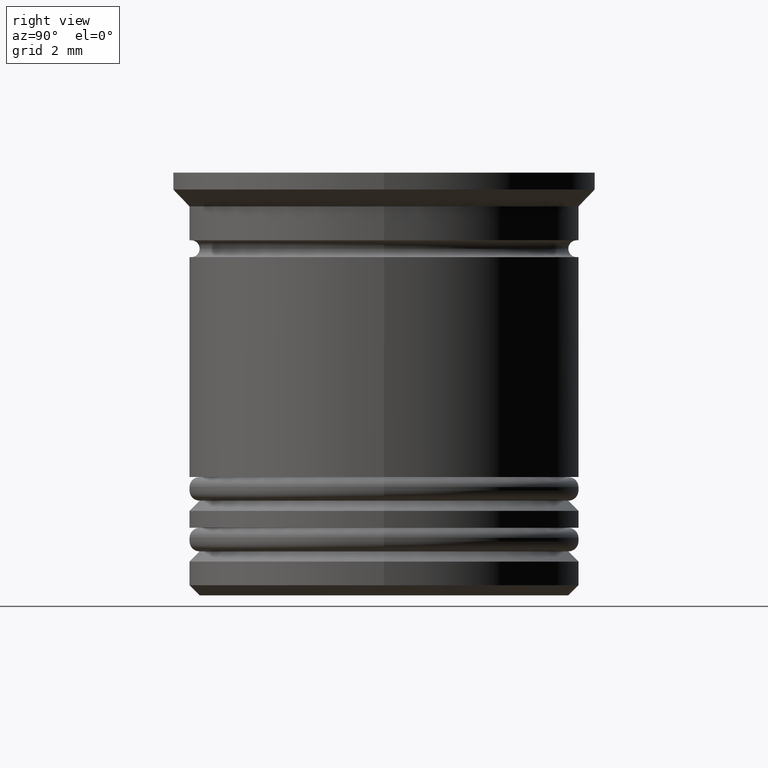
[diagram: clean part render]
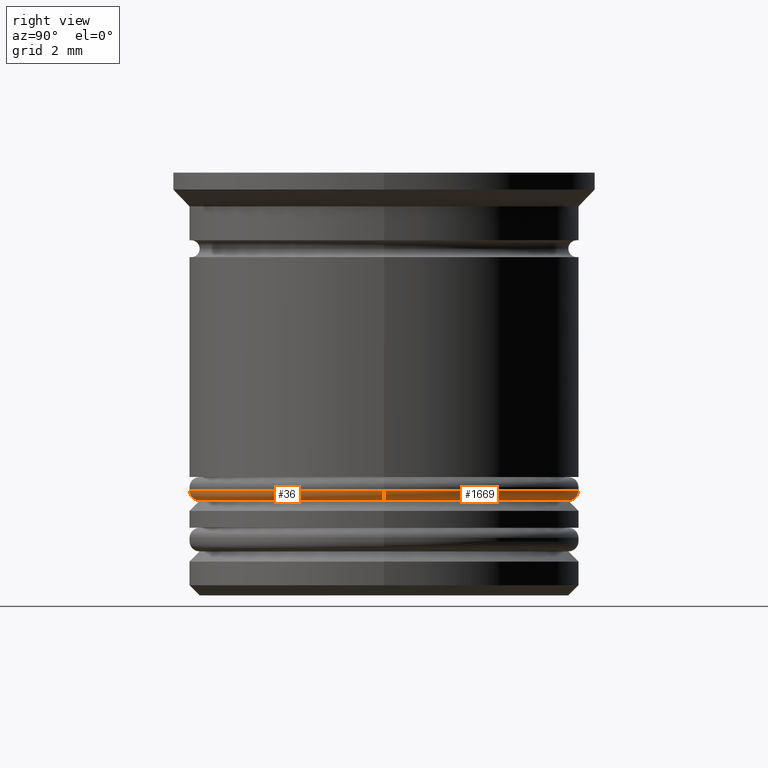
[diagram: same view with one multi-face feature highlighted, each face labeled with its STEP entity id]
A machine part, right view. The highlighted faces form ONE feature: a constant-radius fillet chain: 2 tangent blend faces with common blend radius 0.3 mm. The faces share edges in the B-rep.
Their STEP definitions:
[1] entity #36 (Torus):
#28 = AXIS2_PLACEMENT_3D ( 'NONE', #676, #1135, #1094 ) ;
#36 = ADVANCED_FACE ( 'NONE', ( #1015 ), #877, .T. ) ;
#219 = CARTESIAN_POINT ( 'NONE',  ( -5.750000000000001776, 7.041719095097282852E-16, -9.400000000000005684 ) ) ;
#261 = DIRECTION ( 'NONE',  ( 0.000000000000000000, 0.000000000000000000, 1.000000000000000000 ) ) ;
#272 = CIRCLE ( 'NONE', #1468, 5.450000000000001954 ) ;
#285 = ORIENTED_EDGE ( 'NONE', *, *, #765, .F. ) ;
#306 = AXIS2_PLACEMENT_3D ( 'NONE', #1432, #1878, #1904 ) ;
#328 = CARTESIAN_POINT ( 'NONE',  ( 5.750000000000001776, 0.000000000000000000, -9.400000000000005684 ) ) ;
#415 = CARTESIAN_POINT ( 'NONE',  ( 5.450000000000001954, 0.000000000000000000, -9.700000000000006395 ) ) ;
#644 = EDGE_CURVE ( 'NONE', #1649, #682, #272, .T. ) ;
#646 = CARTESIAN_POINT ( 'NONE',  ( 5.450000000000001954, 0.000000000000000000, -9.400000000000005684 ) ) ;
#676 = CARTESIAN_POINT ( 'NONE',  ( -5.450000000000001954, 6.674325055353077210E-16, -9.400000000000005684 ) ) ;
#682 = VERTEX_POINT ( 'NONE', #745 ) ;
#745 = CARTESIAN_POINT ( 'NONE',  ( -5.450000000000001954, 6.858022075225179538E-16, -9.700000000000006395 ) ) ;
#765 = EDGE_CURVE ( 'NONE', #682, #1642, #1306, .T. ) ;
#872 = ORIENTED_EDGE ( 'NONE', *, *, #1002, .T. ) ;
#877 = TOROIDAL_SURFACE ( 'NONE', #1534, 5.450000000000001954, 0.2999999999999999889 ) ;
#966 = DIRECTION ( 'NONE',  ( 0.000000000000000000, -1.000000000000000000, 0.000000000000000000 ) ) ;
#1002 = EDGE_CURVE ( 'NONE', #1649, #1029, #1470, .T. ) ;
#1015 = FACE_OUTER_BOUND ( 'NONE', #1061, .T. ) ;
#1023 = CARTESIAN_POINT ( 'NONE',  ( 0.000000000000000000, 0.000000000000000000, -9.400000000000005684 ) ) ;
#1029 = VERTEX_POINT ( 'NONE', #328 ) ;
#1045 = AXIS2_PLACEMENT_3D ( 'NONE', #646, #966, #1586 ) ;
#1061 = EDGE_LOOP ( 'NONE', ( #285, #1979, #872, #1180 ) ) ;
#1094 = DIRECTION ( 'NONE',  ( -1.000000000000000000, 1.224646799147353207E-16, 0.000000000000000000 ) ) ;
#1135 = DIRECTION ( 'NONE',  ( 1.224646799147353207E-16, 1.000000000000000000, -0.000000000000000000 ) ) ;
#1180 = ORIENTED_EDGE ( 'NONE', *, *, #1873, .F. ) ;
#1306 = CIRCLE ( 'NONE', #28, 0.2999999999999999334 ) ;
#1432 = CARTESIAN_POINT ( 'NONE',  ( 0.000000000000000000, 0.000000000000000000, -9.400000000000005684 ) ) ;
#1467 = CIRCLE ( 'NONE', #306, 5.750000000000001776 ) ;
#1468 = AXIS2_PLACEMENT_3D ( 'NONE', #1542, #1841, #1833 ) ;
#1470 = CIRCLE ( 'NONE', #1045, 0.2999999999999999334 ) ;
#1497 = DIRECTION ( 'NONE',  ( 1.000000000000000000, 0.000000000000000000, 0.000000000000000000 ) ) ;
#1534 = AXIS2_PLACEMENT_3D ( 'NONE', #1023, #261, #1497 ) ;
#1542 = CARTESIAN_POINT ( 'NONE',  ( 0.000000000000000000, 0.000000000000000000, -9.700000000000006395 ) ) ;
#1586 = DIRECTION ( 'NONE',  ( 0.000000000000000000, 0.000000000000000000, -1.000000000000000000 ) ) ;
#1642 = VERTEX_POINT ( 'NONE', #219 ) ;
#1649 = VERTEX_POINT ( 'NONE', #415 ) ;
#1833 = DIRECTION ( 'NONE',  ( 1.000000000000000000, 0.000000000000000000, 0.000000000000000000 ) ) ;
#1841 = DIRECTION ( 'NONE',  ( -0.000000000000000000, -0.000000000000000000, -1.000000000000000000 ) ) ;
#1873 = EDGE_CURVE ( 'NONE', #1642, #1029, #1467, .T. ) ;
#1878 = DIRECTION ( 'NONE',  ( 0.000000000000000000, 0.000000000000000000, 1.000000000000000000 ) ) ;
#1904 = DIRECTION ( 'NONE',  ( 1.000000000000000000, 0.000000000000000000, 0.000000000000000000 ) ) ;
#1979 = ORIENTED_EDGE ( 'NONE', *, *, #644, .F. ) ;
[2] entity #1669 (Torus):
#28 = AXIS2_PLACEMENT_3D ( 'NONE', #676, #1135, #1094 ) ;
#53 = CIRCLE ( 'NONE', #404, 5.750000000000001776 ) ;
#73 = ORIENTED_EDGE ( 'NONE', *, *, #765, .T. ) ;
#97 = DIRECTION ( 'NONE',  ( 0.000000000000000000, 0.000000000000000000, 1.000000000000000000 ) ) ;
#165 = DIRECTION ( 'NONE',  ( -0.000000000000000000, -0.000000000000000000, -1.000000000000000000 ) ) ;
#219 = CARTESIAN_POINT ( 'NONE',  ( -5.750000000000001776, 7.041719095097282852E-16, -9.400000000000005684 ) ) ;
#258 = ORIENTED_EDGE ( 'NONE', *, *, #418, .F. ) ;
#276 = CIRCLE ( 'NONE', #1771, 5.450000000000001954 ) ;
#328 = CARTESIAN_POINT ( 'NONE',  ( 5.750000000000001776, 0.000000000000000000, -9.400000000000005684 ) ) ;
#380 = AXIS2_PLACEMENT_3D ( 'NONE', #1150, #97, #679 ) ;
#404 = AXIS2_PLACEMENT_3D ( 'NONE', #1839, #1830, #1069 ) ;
#415 = CARTESIAN_POINT ( 'NONE',  ( 5.450000000000001954, 0.000000000000000000, -9.700000000000006395 ) ) ;
#418 = EDGE_CURVE ( 'NONE', #1029, #1642, #53, .T. ) ;
#604 = TOROIDAL_SURFACE ( 'NONE', #380, 5.450000000000001954, 0.2999999999999999889 ) ;
#646 = CARTESIAN_POINT ( 'NONE',  ( 5.450000000000001954, 0.000000000000000000, -9.400000000000005684 ) ) ;
#676 = CARTESIAN_POINT ( 'NONE',  ( -5.450000000000001954, 6.674325055353077210E-16, -9.400000000000005684 ) ) ;
#679 = DIRECTION ( 'NONE',  ( 1.000000000000000000, 0.000000000000000000, 0.000000000000000000 ) ) ;
#682 = VERTEX_POINT ( 'NONE', #745 ) ;
#745 = CARTESIAN_POINT ( 'NONE',  ( -5.450000000000001954, 6.858022075225179538E-16, -9.700000000000006395 ) ) ;
#765 = EDGE_CURVE ( 'NONE', #682, #1642, #1306, .T. ) ;
#793 = EDGE_LOOP ( 'NONE', ( #904, #73, #258, #910 ) ) ;
#904 = ORIENTED_EDGE ( 'NONE', *, *, #1382, .F. ) ;
#910 = ORIENTED_EDGE ( 'NONE', *, *, #1002, .F. ) ;
#919 = CARTESIAN_POINT ( 'NONE',  ( 0.000000000000000000, 0.000000000000000000, -9.700000000000006395 ) ) ;
#966 = DIRECTION ( 'NONE',  ( 0.000000000000000000, -1.000000000000000000, 0.000000000000000000 ) ) ;
#1002 = EDGE_CURVE ( 'NONE', #1649, #1029, #1470, .T. ) ;
#1029 = VERTEX_POINT ( 'NONE', #328 ) ;
#1045 = AXIS2_PLACEMENT_3D ( 'NONE', #646, #966, #1586 ) ;
#1069 = DIRECTION ( 'NONE',  ( 1.000000000000000000, 0.000000000000000000, 0.000000000000000000 ) ) ;
#1094 = DIRECTION ( 'NONE',  ( -1.000000000000000000, 1.224646799147353207E-16, 0.000000000000000000 ) ) ;
#1135 = DIRECTION ( 'NONE',  ( 1.224646799147353207E-16, 1.000000000000000000, -0.000000000000000000 ) ) ;
#1138 = FACE_OUTER_BOUND ( 'NONE', #793, .T. ) ;
#1150 = CARTESIAN_POINT ( 'NONE',  ( 0.000000000000000000, 0.000000000000000000, -9.400000000000005684 ) ) ;
#1242 = DIRECTION ( 'NONE',  ( 1.000000000000000000, 0.000000000000000000, 0.000000000000000000 ) ) ;
#1306 = CIRCLE ( 'NONE', #28, 0.2999999999999999334 ) ;
#1382 = EDGE_CURVE ( 'NONE', #682, #1649, #276, .T. ) ;
#1470 = CIRCLE ( 'NONE', #1045, 0.2999999999999999334 ) ;
#1586 = DIRECTION ( 'NONE',  ( 0.000000000000000000, 0.000000000000000000, -1.000000000000000000 ) ) ;
#1642 = VERTEX_POINT ( 'NONE', #219 ) ;
#1649 = VERTEX_POINT ( 'NONE', #415 ) ;
#1669 = ADVANCED_FACE ( 'NONE', ( #1138 ), #604, .T. ) ;
#1771 = AXIS2_PLACEMENT_3D ( 'NONE', #919, #165, #1242 ) ;
#1830 = DIRECTION ( 'NONE',  ( 0.000000000000000000, 0.000000000000000000, 1.000000000000000000 ) ) ;
#1839 = CARTESIAN_POINT ( 'NONE',  ( 0.000000000000000000, 0.000000000000000000, -9.400000000000005684 ) ) ;